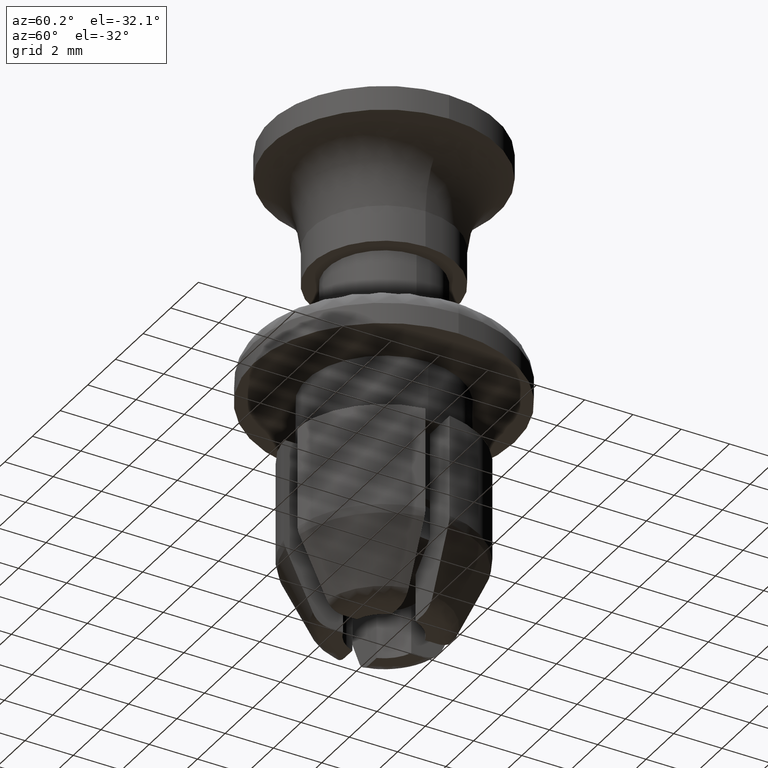
[diagram: clean part render]
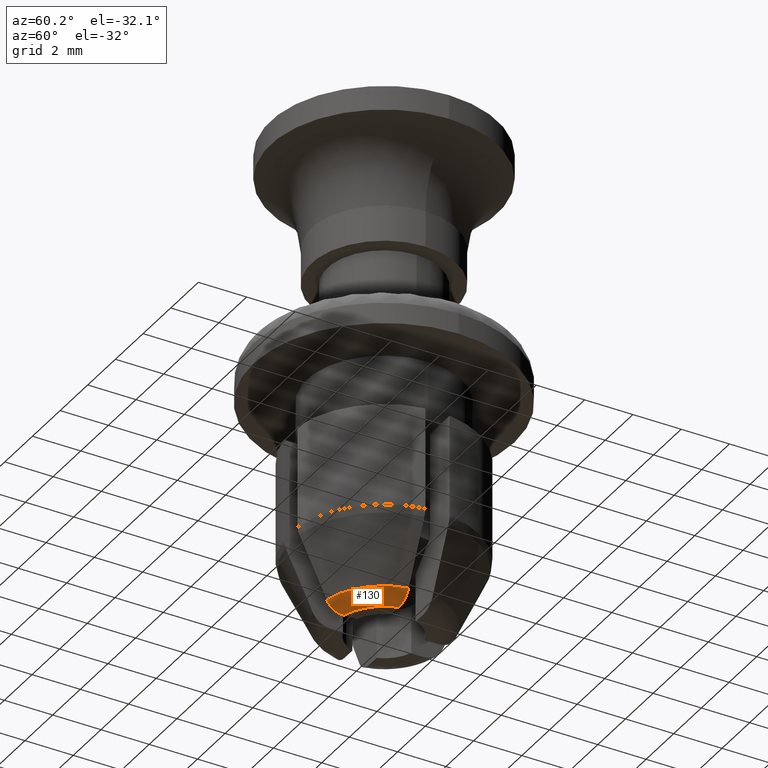
[diagram: same view with one face highlighted and labeled with its STEP entity id]
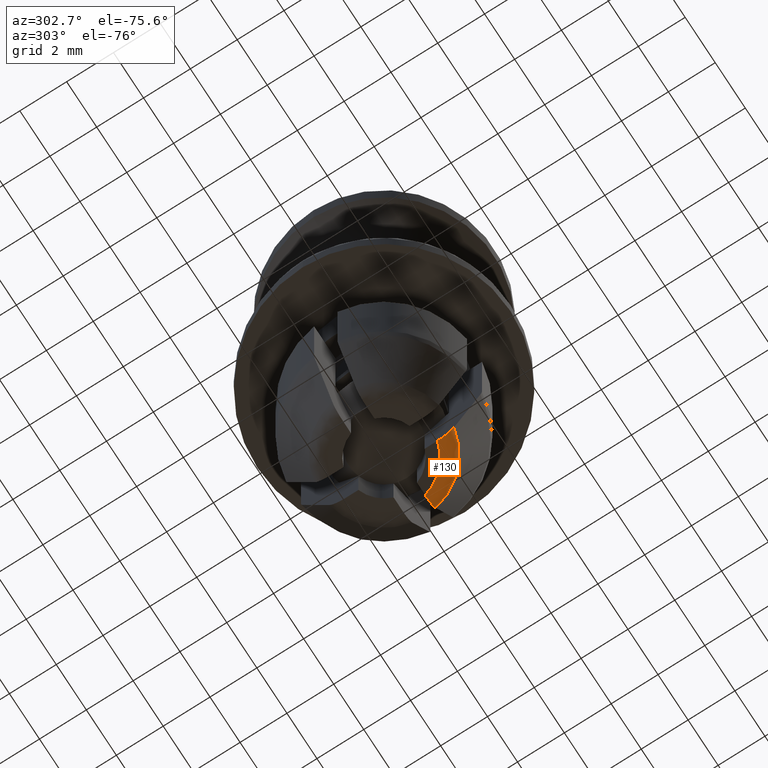
[diagram: same view with one face highlighted and labeled with its STEP entity id]
A machine part, auxiliary view. The second image highlights one B-rep face of the part: STEP entity #130.
A second angle (auxiliary view) of the same face is appended — the face is thin or edge-on in the first view.
In plain terms, the highlighted face is a freeform B-spline surface patch.
Its self-contained STEP definition (entity closure, byte-faithful):
#130=ADVANCED_FACE('',(#375),#374,.T.);
#374=( BOUNDED_SURFACE() B_SPLINE_SURFACE( 2,2,((#1107,#1108,#1109,#1110,#1111),(#1112,#1113,#1114,#1115,#1116),(#1117,#1118,#1119,#1120,#1121)), .UNSPECIFIED.,.F.,.F.,.F.) B_SPLINE_SURFACE_WITH_KNOTS((3,3),(3,2,3),(0.00000000000E+00,1.00000000000E+00),(0.00000000000E+00,5.00000000000E-01,1.00000000000E+00), .UNSPECIFIED. ) GEOMETRIC_REPRESENTATION_ITEM() RATIONAL_B_SPLINE_SURFACE(((1.00000000000E+00,8.39915589980E-01,1.00000000000E+00,8.39915589980E-01,1.00000000000E+00),(8.25525752787E-01,6.93371949696E-01,8.25525752787E-01,6.93371949696E-01,8.25525752787E-01),(1.00000000000E+00,8.39915589980E-01,1.00000000000E+00,8.39915589980E-01,1.00000000000E+00))) REPRESENTATION_ITEM('') SURFACE() );
#375=FACE_OUTER_BOUND('',#1122,.T.);
#1107=CARTESIAN_POINT('',(2.65960002501E+00,-4.99801323324E-01,-1.14584872974E+01));
#1108=CARTESIAN_POINT('',(2.46388856431E+00,-4.63022542257E-01,-1.19003000000E+01));
#1109=CARTESIAN_POINT('',(1.98760807922E+00,-3.73518250452E-01,-1.19003000000E+01));
#1110=CARTESIAN_POINT('',(1.51132759413E+00,-2.84013958647E-01,-1.19003000000E+01));
#1111=CARTESIAN_POINT('',(1.31561613343E+00,-2.47235177580E-01,-1.14584872974E+01));
#1112=CARTESIAN_POINT('',(2.31791462322E+00,-2.31801680365E+00,-1.14584872974E+01));
#1113=CARTESIAN_POINT('',(2.14734669856E+00,-2.14744135986E+00,-1.19003000000E+01));
#1114=CARTESIAN_POINT('',(1.73225514691E+00,-1.73233150977E+00,-1.19003000000E+01));
#1115=CARTESIAN_POINT('',(1.31716359526E+00,-1.31722165967E+00,-1.19003000000E+01));
#1116=CARTESIAN_POINT('',(1.14659567061E+00,-1.14664621588E+00,-1.14584872974E+01));
#1117=CARTESIAN_POINT('',(4.99684082503E-01,-2.65962205464E+00,-1.14584872974E+01));
#1118=CARTESIAN_POINT('',(4.62913928813E-01,-2.46390897285E+00,-1.19003000000E+01));
#1119=CARTESIAN_POINT('',(3.73430632464E-01,-1.98762454270E+00,-1.19003000000E+01));
#1120=CARTESIAN_POINT('',(2.83947336115E-01,-1.51134011255E+00,-1.19003000000E+01));
#1121=CARTESIAN_POINT('',(2.47177182425E-01,-1.31562703076E+00,-1.14584872974E+01));
#1122=EDGE_LOOP('',(#1708,#1709,#1710,#1711));
#1708=ORIENTED_EDGE('',*,*,#2089,.F.);
#1709=ORIENTED_EDGE('',*,*,#2090,.F.);
#1710=ORIENTED_EDGE('',*,*,#2017,.F.);
#1711=ORIENTED_EDGE('',*,*,#2091,.T.);
#2017=EDGE_CURVE('',#2273,#2280,#2281,.T.);
#2089=EDGE_CURVE('',#2773,#2774,#2775,.T.);
#2090=EDGE_CURVE('',#2280,#2773,#2781,.T.);
#2091=EDGE_CURVE('',#2273,#2774,#2787,.T.);
#2273=VERTEX_POINT('',#3550);
#2280=VERTEX_POINT('',#3555);
#2281=(BOUNDED_CURVE() B_SPLINE_CURVE(3,(#3556,#3557,#3558,#3559,#3560,#3561),.UNSPECIFIED.,.F.,.F.) B_SPLINE_CURVE_WITH_KNOTS((4,2,4),(3.08512173195E-03,3.52051880556E-03,3.95591587917E-03),.UNSPECIFIED.) CURVE() GEOMETRIC_REPRESENTATION_ITEM() RATIONAL_B_SPLINE_CURVE((1.00000000000E+00,1.00000000000E+00,1.00000000000E+00,1.00000000000E+00,1.00000000000E+00,1.00000000000E+00)) REPRESENTATION_ITEM('') );
#2773=VERTEX_POINT('',#3899);
#2774=VERTEX_POINT('',#3900);
#2775=(BOUNDED_CURVE() B_SPLINE_CURVE(3,(#3901,#3902,#3903,#3904,#3905,#3906),.UNSPECIFIED.,.F.,.F.) B_SPLINE_CURVE_WITH_KNOTS((4,2,4),(4.23260735159E-03,4.66709277576E-03,5.10157819993E-03),.UNSPECIFIED.) CURVE() GEOMETRIC_REPRESENTATION_ITEM() RATIONAL_B_SPLINE_CURVE((1.00000000000E+00,1.00000000000E+00,1.00000000000E+00,1.00000000000E+00,1.00000000000E+00,1.00000000000E+00)) REPRESENTATION_ITEM('') );
#2781=CIRCLE('',#3910,2.02240000000E+00);
#2787=CIRCLE('',#3914,2.70602087899E+00);
#3550=CARTESIAN_POINT('',(2.65942644146E+00,-5.00000000000E-01,-1.14587841873E+01));
#3555=CARTESIAN_POINT('',(1.95961775865E+00,-5.00000000000E-01,-1.19003000000E+01));
#3556=CARTESIAN_POINT('',(2.65942644146E+00,-5.00000000000E-01,-1.14587841873E+01));
#3557=CARTESIAN_POINT('',(2.59862609398E+00,-5.00000000000E-01,-1.15912016651E+01));
#3558=CARTESIAN_POINT('',(2.49902238861E+00,-5.00000000000E-01,-1.17041160137E+01));
#3559=CARTESIAN_POINT('',(2.25006337384E+00,-5.00000000000E-01,-1.18599891274E+01));
#3560=CARTESIAN_POINT('',(2.10491213051E+00,-5.00000000000E-01,-1.19003000000E+01));
#3561=CARTESIAN_POINT('',(1.95961775865E+00,-5.00000000000E-01,-1.19003000000E+01));
#3899=CARTESIAN_POINT('',(5.00000000000E-01,-1.95961775865E+00,-1.19003000000E+01));
#3900=CARTESIAN_POINT('',(5.00000000000E-01,-2.65942644146E+00,-1.14587841873E+01));
#3901=CARTESIAN_POINT('',(5.00000000000E-01,-1.95961775865E+00,-1.19003000000E+01));
#3902=CARTESIAN_POINT('',(5.00000000000E-01,-2.10444054588E+00,-1.19003000000E+01));
#3903=CARTESIAN_POINT('',(5.00000000000E-01,-2.25044402903E+00,-1.18596866826E+01));
#3904=CARTESIAN_POINT('',(5.00000000000E-01,-2.49815989338E+00,-1.17047200137E+01));
#3905=CARTESIAN_POINT('',(5.00000000000E-01,-2.59886674646E+00,-1.15906775465E+01));
#3906=CARTESIAN_POINT('',(5.00000000000E-01,-2.65942644146E+00,-1.14587841873E+01));
#3907=CARTESIAN_POINT('',(0.00000000000E+00,0.00000000000E+00,-1.19003000000E+01));
#3908=DIRECTION('',(0.00000000000E+00,0.00000000000E+00,-1.00000000000E+00));
#3909=DIRECTION('',(1.00000000000E+00,-0.00000000000E+00,-0.00000000000E+00));
#3910=AXIS2_PLACEMENT_3D('',#3907,#3908,#3909);
#3911=CARTESIAN_POINT('',(0.00000000000E+00,0.00000000000E+00,-1.14587841873E+01));
#3912=DIRECTION('',(0.00000000000E+00,0.00000000000E+00,-1.00000000000E+00));
#3913=DIRECTION('',(1.00000000000E+00,-0.00000000000E+00,-0.00000000000E+00));
#3914=AXIS2_PLACEMENT_3D('',#3911,#3912,#3913);